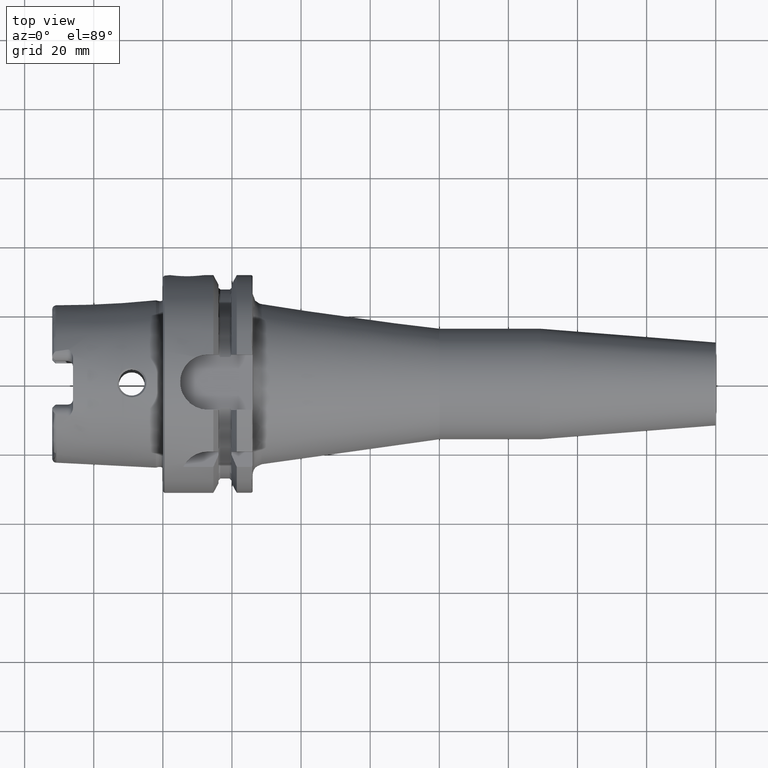
[diagram: clean part render]
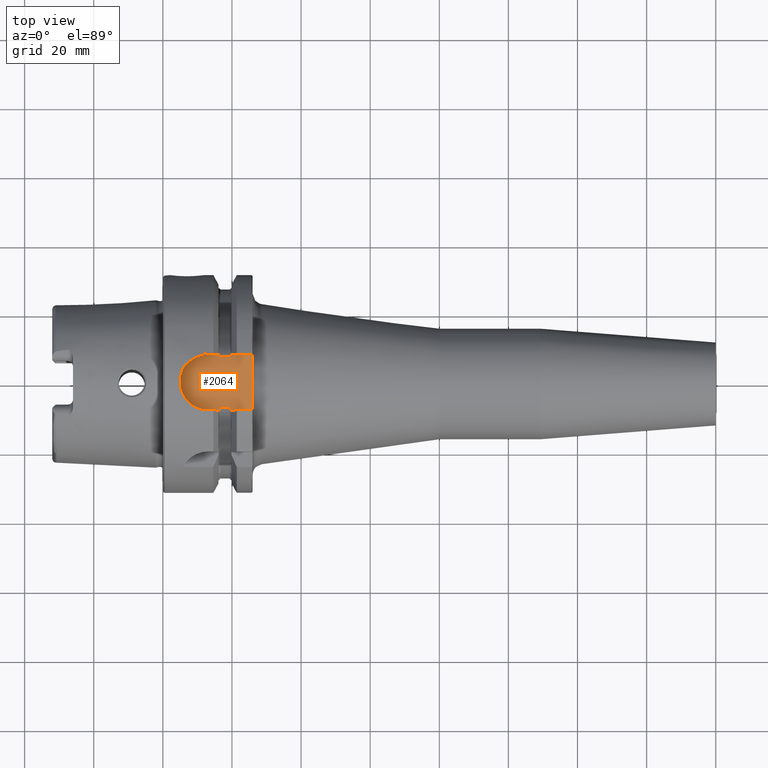
[diagram: same view with one face highlighted and labeled with its STEP entity id]
A machine part, top view. The second image highlights one B-rep face of the part: STEP entity #2064.
In plain terms, the highlighted planar face has unit normal (0, 0, 1).
Its self-contained STEP definition (entity closure, byte-faithful):
#76=B_SPLINE_CURVE_WITH_KNOTS('',3,(#4146,#4147,#4148,#4149,#4150,#4151,
#4152,#4153,#4154,#4155),.UNSPECIFIED.,.F.,.F.,(4,2,2,2,4),(0.252714277572707,
0.289228035148658,0.316691561230897,0.323545183976989,0.328785692776271),
 .UNSPECIFIED.);
#77=B_SPLINE_CURVE_WITH_KNOTS('',3,(#4161,#4162,#4163,#4164,#4165,#4166,
#4167,#4168,#4169,#4170),.UNSPECIFIED.,.F.,.F.,(4,2,2,2,4),(0.328785692776271,
0.334026201575553,0.340879824321645,0.368343350403883,0.404857107979834),
 .UNSPECIFIED.);
#80=B_SPLINE_CURVE_WITH_KNOTS('',3,(#4215,#4216,#4217,#4218,#4219,#4220,
#4221,#4222,#4223,#4224),.UNSPECIFIED.,.F.,.F.,(4,2,2,2,4),(0.32878569277627,
0.334026201575551,0.340879824321645,0.368343350403882,0.404857107979833),
 .UNSPECIFIED.);
#83=B_SPLINE_CURVE_WITH_KNOTS('',3,(#4241,#4242,#4243,#4244,#4245,#4246,
#4247,#4248,#4249,#4250),.UNSPECIFIED.,.F.,.F.,(4,2,2,2,4),(0.252714277572707,
0.289228035148658,0.316691561230896,0.323545183976989,0.32878569277627),
 .UNSPECIFIED.);
#133=PLANE('',#2292);
#290=FACE_OUTER_BOUND('',#418,.T.);
#418=EDGE_LOOP('',(#1752,#1753,#1754,#1755,#1756,#1757,#1758,#1759,#1760,
#1761,#1762,#1763));
#475=LINE('',#3046,#586);
#549=LINE('',#4200,#660);
#550=LINE('',#4205,#661);
#552=LINE('',#4254,#663);
#553=LINE('',#4257,#664);
#557=LINE('',#4289,#668);
#559=LINE('',#4292,#670);
#586=VECTOR('',#2429,10.);
#660=VECTOR('',#2761,10.);
#661=VECTOR('',#2768,10.);
#663=VECTOR('',#2786,10.);
#664=VECTOR('',#2789,10.);
#668=VECTOR('',#2799,10.);
#670=VECTOR('',#2803,10.);
#763=CIRCLE('',#2289,8.);
#828=VERTEX_POINT('',#3043);
#829=VERTEX_POINT('',#3045);
#970=VERTEX_POINT('',#4138);
#971=VERTEX_POINT('',#4145);
#972=VERTEX_POINT('',#4158);
#973=VERTEX_POINT('',#4160);
#976=VERTEX_POINT('',#4199);
#977=VERTEX_POINT('',#4203);
#979=VERTEX_POINT('',#4214);
#981=VERTEX_POINT('',#4234);
#982=VERTEX_POINT('',#4256);
#986=VERTEX_POINT('',#4285);
#1038=EDGE_CURVE('',#828,#829,#475,.T.);
#1233=EDGE_CURVE('',#970,#971,#76,.T.);
#1236=EDGE_CURVE('',#972,#973,#77,.T.);
#1244=EDGE_CURVE('',#971,#976,#549,.T.);
#1247=EDGE_CURVE('',#977,#972,#550,.T.);
#1250=EDGE_CURVE('',#976,#979,#80,.T.);
#1254=EDGE_CURVE('',#981,#977,#83,.T.);
#1256=EDGE_CURVE('',#981,#829,#552,.T.);
#1257=EDGE_CURVE('',#982,#973,#553,.T.);
#1262=EDGE_CURVE('',#986,#982,#763,.T.);
#1264=EDGE_CURVE('',#828,#979,#557,.T.);
#1266=EDGE_CURVE('',#970,#986,#559,.T.);
#1752=ORIENTED_EDGE('',*,*,#1236,.F.);
#1753=ORIENTED_EDGE('',*,*,#1247,.F.);
#1754=ORIENTED_EDGE('',*,*,#1254,.F.);
#1755=ORIENTED_EDGE('',*,*,#1256,.T.);
#1756=ORIENTED_EDGE('',*,*,#1038,.F.);
#1757=ORIENTED_EDGE('',*,*,#1264,.T.);
#1758=ORIENTED_EDGE('',*,*,#1250,.F.);
#1759=ORIENTED_EDGE('',*,*,#1244,.F.);
#1760=ORIENTED_EDGE('',*,*,#1233,.F.);
#1761=ORIENTED_EDGE('',*,*,#1266,.T.);
#1762=ORIENTED_EDGE('',*,*,#1262,.T.);
#1763=ORIENTED_EDGE('',*,*,#1257,.T.);
#2064=ADVANCED_FACE('',(#290),#133,.T.);
#2289=AXIS2_PLACEMENT_3D('',#4286,#2794,#2795);
#2292=AXIS2_PLACEMENT_3D('',#4293,#2804,#2805);
#2429=DIRECTION('',(0.,-1.,0.));
#2761=DIRECTION('',(1.,0.,0.));
#2768=DIRECTION('',(-1.,0.,0.));
#2786=DIRECTION('',(1.,3.41607084500048E-16,0.));
#2789=DIRECTION('',(1.,3.41607084500048E-16,0.));
#2794=DIRECTION('center_axis',(0.,0.,1.));
#2795=DIRECTION('ref_axis',(0.,1.,0.));
#2799=DIRECTION('',(-1.,-2.56205313375036E-16,0.));
#2803=DIRECTION('',(-1.,-2.56205313375036E-16,0.));
#2804=DIRECTION('center_axis',(0.,0.,1.));
#2805=DIRECTION('ref_axis',(1.,0.,0.));
#3043=CARTESIAN_POINT('',(26.,8.,26.5));
#3045=CARTESIAN_POINT('',(26.,-8.,26.5));
#3046=CARTESIAN_POINT('',(26.,5.55111512312578E-16,26.5));
#4138=CARTESIAN_POINT('',(16.2397987608563,8.,26.5));
#4145=CARTESIAN_POINT('',(16.625,7.34846922834952,26.5));
#4146=CARTESIAN_POINT('Ctrl Pts',(16.2397987608563,8.,26.5));
#4147=CARTESIAN_POINT('Ctrl Pts',(16.2699372185845,7.87398729043679,26.5));
#4148=CARTESIAN_POINT('Ctrl Pts',(16.3063113289614,7.75248496685372,26.5));
#4149=CARTESIAN_POINT('Ctrl Pts',(16.3906456489289,7.5566112023157,26.5));
#4150=CARTESIAN_POINT('Ctrl Pts',(16.4411490019356,7.4590543697872,26.5));
#4151=CARTESIAN_POINT('Ctrl Pts',(16.5270295504762,7.38349170057081,26.5));
#4152=CARTESIAN_POINT('Ctrl Pts',(16.5496994821687,7.36807649661538,26.5));
#4153=CARTESIAN_POINT('Ctrl Pts',(16.587038394856,7.35287762173868,26.5));
#4154=CARTESIAN_POINT('Ctrl Pts',(16.6075316373357,7.34846922834952,26.5));
#4155=CARTESIAN_POINT('Ctrl Pts',(16.625,7.34846922834952,26.5));
#4158=CARTESIAN_POINT('',(16.625,-7.34846922834952,26.5));
#4160=CARTESIAN_POINT('',(16.2397987608563,-8.,26.5));
#4161=CARTESIAN_POINT('Ctrl Pts',(16.625,-7.34846922834952,26.5));
#4162=CARTESIAN_POINT('Ctrl Pts',(16.6075316373357,-7.34846922834952,26.5));
#4163=CARTESIAN_POINT('Ctrl Pts',(16.587038394856,-7.35287762173868,26.5));
#4164=CARTESIAN_POINT('Ctrl Pts',(16.5496994821687,-7.36807649661538,26.5));
#4165=CARTESIAN_POINT('Ctrl Pts',(16.5270295504762,-7.38349170057081,26.5));
#4166=CARTESIAN_POINT('Ctrl Pts',(16.4411490019356,-7.4590543697872,26.5));
#4167=CARTESIAN_POINT('Ctrl Pts',(16.3906456489289,-7.5566112023157,26.5));
#4168=CARTESIAN_POINT('Ctrl Pts',(16.3063113289614,-7.75248496685372,26.5));
#4169=CARTESIAN_POINT('Ctrl Pts',(16.2699372185845,-7.87398729043679,26.5));
#4170=CARTESIAN_POINT('Ctrl Pts',(16.2397987608563,-8.,26.5));
#4199=CARTESIAN_POINT('',(19.375,7.34846922834952,26.5));
#4200=CARTESIAN_POINT('',(18.,7.34846922834952,26.5));
#4203=CARTESIAN_POINT('',(19.375,-7.34846922834952,26.5));
#4205=CARTESIAN_POINT('',(18.,-7.34846922834952,26.5));
#4214=CARTESIAN_POINT('',(19.7602012391437,8.,26.5));
#4215=CARTESIAN_POINT('Ctrl Pts',(19.375,7.34846922834952,26.5));
#4216=CARTESIAN_POINT('Ctrl Pts',(19.3924683626643,7.34846922834952,26.5));
#4217=CARTESIAN_POINT('Ctrl Pts',(19.412961605144,7.35287762173868,26.5));
#4218=CARTESIAN_POINT('Ctrl Pts',(19.4503005178313,7.36807649661538,26.5));
#4219=CARTESIAN_POINT('Ctrl Pts',(19.4729704495238,7.38349170057082,26.5));
#4220=CARTESIAN_POINT('Ctrl Pts',(19.5588509980644,7.45905436978721,26.5));
#4221=CARTESIAN_POINT('Ctrl Pts',(19.6093543510711,7.5566112023157,26.5));
#4222=CARTESIAN_POINT('Ctrl Pts',(19.6936886710386,7.75248496685372,26.5));
#4223=CARTESIAN_POINT('Ctrl Pts',(19.7300627814155,7.87398729043679,26.5));
#4224=CARTESIAN_POINT('Ctrl Pts',(19.7602012391437,8.,26.5));
#4234=CARTESIAN_POINT('',(19.7602012391437,-8.,26.5));
#4241=CARTESIAN_POINT('Ctrl Pts',(19.7602012391436,-8.,26.5));
#4242=CARTESIAN_POINT('Ctrl Pts',(19.7300627814155,-7.87398729043679,26.5));
#4243=CARTESIAN_POINT('Ctrl Pts',(19.6936886710386,-7.75248496685372,26.5));
#4244=CARTESIAN_POINT('Ctrl Pts',(19.6093543510711,-7.5566112023157,26.5));
#4245=CARTESIAN_POINT('Ctrl Pts',(19.5588509980644,-7.45905436978721,26.5));
#4246=CARTESIAN_POINT('Ctrl Pts',(19.4729704495238,-7.38349170057082,26.5));
#4247=CARTESIAN_POINT('Ctrl Pts',(19.4503005178313,-7.36807649661538,26.5));
#4248=CARTESIAN_POINT('Ctrl Pts',(19.412961605144,-7.35287762173868,26.5));
#4249=CARTESIAN_POINT('Ctrl Pts',(19.3924683626643,-7.34846922834952,26.5));
#4250=CARTESIAN_POINT('Ctrl Pts',(19.375,-7.34846922834952,26.5));
#4254=CARTESIAN_POINT('',(13.,-8.,26.5));
#4256=CARTESIAN_POINT('',(13.,-8.,26.5));
#4257=CARTESIAN_POINT('',(13.,-8.,26.5));
#4285=CARTESIAN_POINT('',(13.,8.,26.5));
#4286=CARTESIAN_POINT('Origin',(13.,0.,26.5));
#4289=CARTESIAN_POINT('',(26.,8.,26.5));
#4292=CARTESIAN_POINT('',(26.,8.,26.5));
#4293=CARTESIAN_POINT('Origin',(15.5,1.11022302462516E-15,26.5));